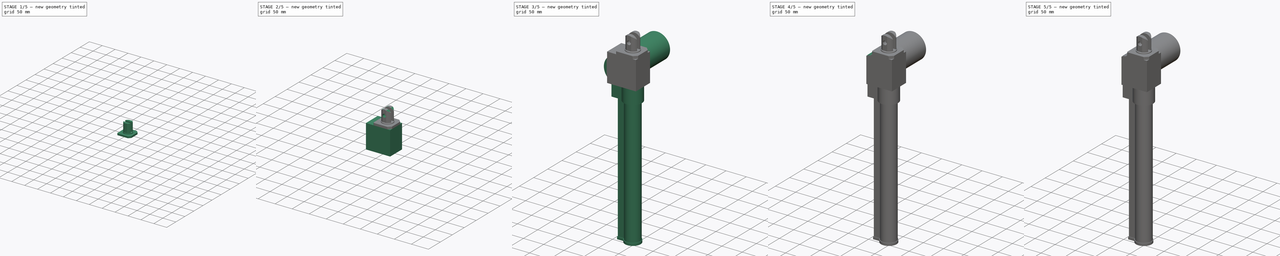
[diagram: build sequence overview — one tinted view per stage of 5, left to right]
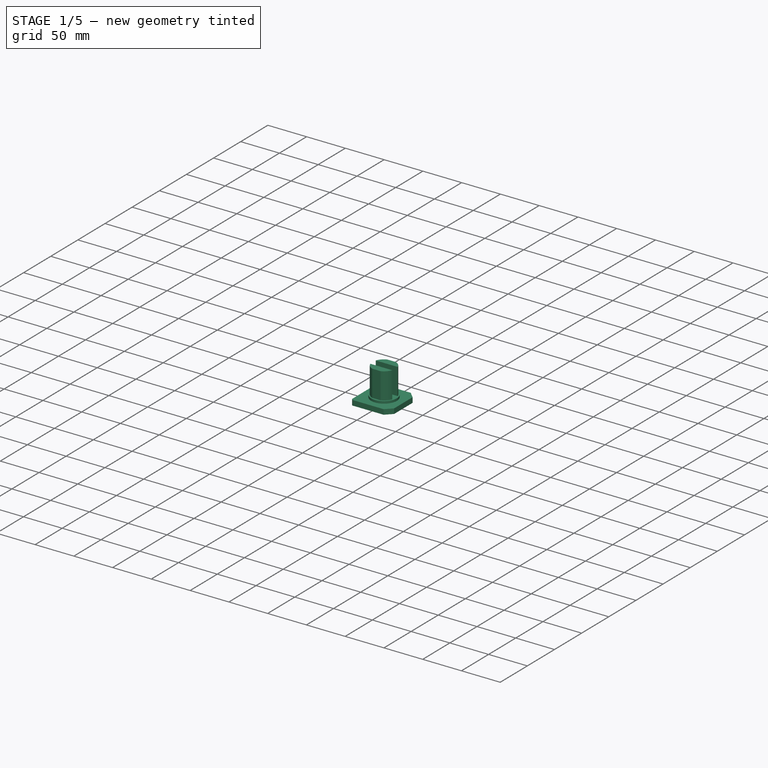
[diagram: stage 1 of 5 — iso view after this stage's code; geometry added in this stage tinted green]
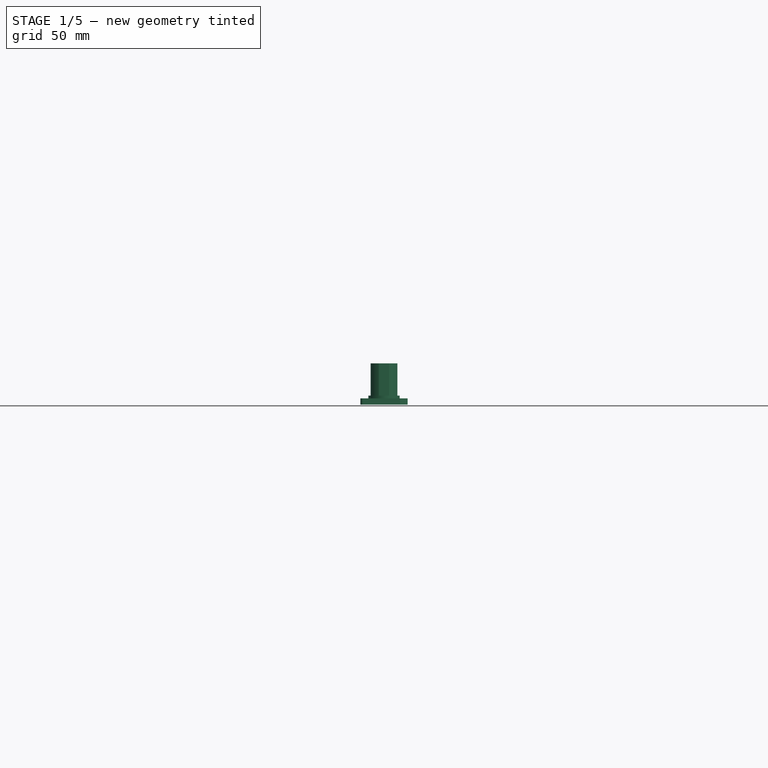
[diagram: stage 1 of 5 — front view after this stage's code; geometry added in this stage tinted green]
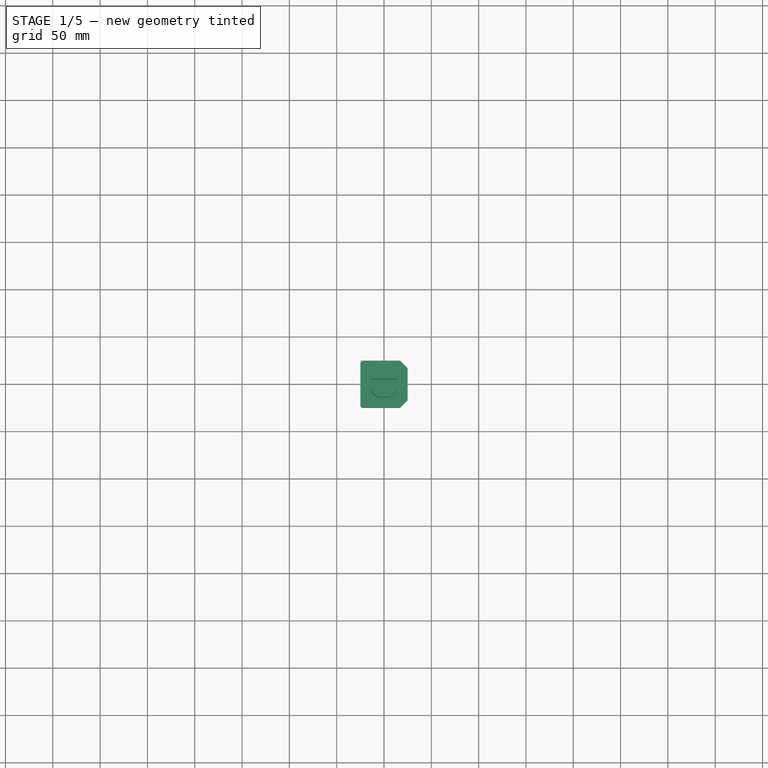
[diagram: stage 1 of 5 — top view after this stage's code; geometry added in this stage tinted green]
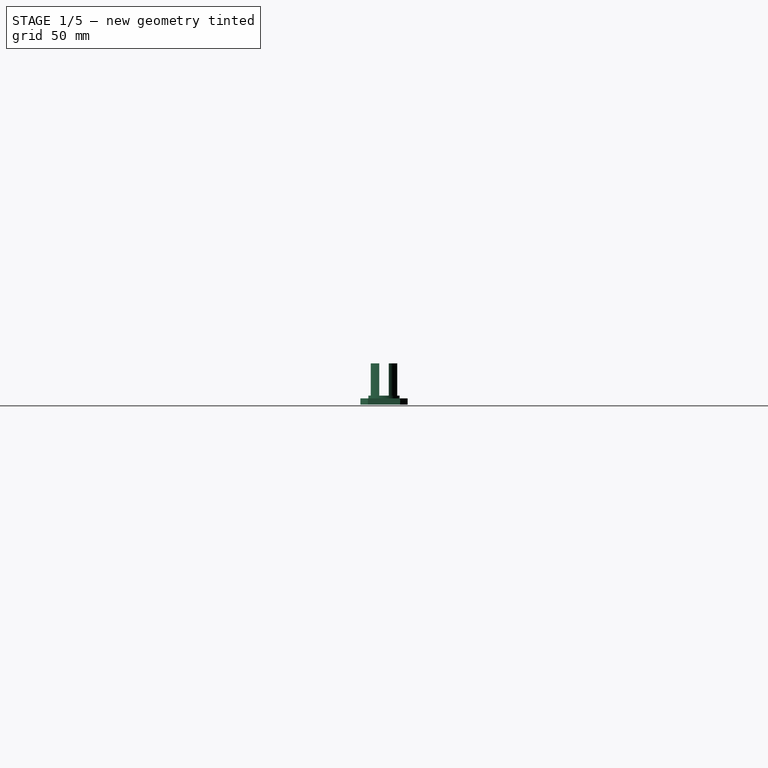
[diagram: stage 1 of 5 — right view after this stage's code; geometry added in this stage tinted green]
FCSTD DOCUMENT  (FreeCAD 0.19R24366 (Git))
Label: Actuator
License: All rights reserved
LicenseURL: http://en.wikipedia.org/wiki/All_rights_reserved
objects: Sketcher::SketchObject×13, PartDesign::Pad×9, PartDesign::Pocket×4, PartDesign::Chamfer×2, PartDesign::Fillet×1, PartDesign::Body×1
note: 46 computed .brp shape members not serialized (recipe doc carries the construction recipe); baked Part::Feature solids carry a one-line shape summary decoded from their .brp

FEATURE [Sketcher::SketchObject] Sketch  label="End mount plate sketch"
  FullyConstrained = true
  MapMode = 5
  Support = -> [XY_Plane]
  sketch-geometry (8):
    g0: LineSegment StartX=-22 StartY=25 StartZ=0 EndX=17 EndY=25 EndZ=0
    g1: LineSegment StartX=25 StartY=17 StartZ=0 EndX=25 EndY=-17 EndZ=0
    g2: LineSegment StartX=17 StartY=-25 StartZ=0 EndX=-22 EndY=-25 EndZ=0
    g3: LineSegment StartX=-25 StartY=-22 StartZ=0 EndX=-25 EndY=22 EndZ=0
    g4: LineSegment StartX=17 StartY=25 StartZ=0 EndX=25 EndY=17 EndZ=0
    g5: LineSegment StartX=17 StartY=-25 StartZ=0 EndX=25 EndY=-17 EndZ=0
    g6: ArcOfCircle CenterX=-22 CenterY=22 CenterZ=0 NormalX=0 NormalY=0 NormalZ=1 AngleXU=0 Radius=3 StartAngle=1.5708 EndAngle=3.14159
    g7: ArcOfCircle CenterX=-22 CenterY=-22 CenterZ=0 NormalX=0 NormalY=0 NormalZ=1 AngleXU=0 Radius=3 StartAngle=3.14159 EndAngle=4.71239
  constraints (22):
    c: Horizontal(g0)
    c: Horizontal(g2)
    c: Vertical(g1)
    c: Vertical(g3)
    c: Tangent(g0,g6) = 1.5708
    c: Tangent(g3,g6) = 1.5708
    c: Tangent(g3,g7) = 1.5708
    c: Tangent(g2,g7) = 1.5708
    c: Radius(g6) = 3
    c: Radius(g7) = 3
    c: Coincident(g0,g4)
    c: Coincident(g1,g4)
    c: Coincident(g1,g5)
    c: Coincident(g2,g5)
    c: DistanceX(g0,g1) = 8
    c: DistanceY(g1,g0) = 8
    c: DistanceX(g2,g1) = 8
    c: DistanceY(g2,g1) = 8
    c: DistanceY(g2,g0) = 50
    c: DistanceX(g3,g1) = 50
    c: DistanceX(g-1,g1) = 25
    c: DistanceY(g2,g-1) = 25
FEATURE [PartDesign::Pad] Pad  label="End mount plate"
  Direction = (1,1,1)
  Length = 6.5
  Length2 = 100
  Profile = -> Sketch
  Type = 0
FEATURE [Sketcher::SketchObject] Sketch001  label="End mount plate raise sketch"
  FullyConstrained = true
  MapMode = 5
  Placement = pos=(0,0,6.5) rot=(0,0,1;0rad)
  Support = -> [Pad]
  sketch-geometry (1):
    g0: Circle CenterX=0 CenterY=0 CenterZ=0 NormalX=0 NormalY=0 NormalZ=1 AngleXU=0 Radius=16.5
  constraints (2):
    c: Coincident(g0,g-1)
    c: Radius(g0) = 16.5
FEATURE [PartDesign::Pad] Pad001  label="End mount plate raise"
  BaseFeature = -> Pad
  Direction = (1,1,1)
  Length = 3
  Length2 = 100
  Profile = -> Sketch001
  Type = 0
FEATURE [Sketcher::SketchObject] Sketch002  label="End mount forks sketch"
  FullyConstrained = true
  MapMode = 5
  Placement = pos=(0,0,9.5) rot=(0,0,1;0rad)
  Support = -> [Pad001]
  sketch-geometry (8):
    g0: ArcOfCircle CenterX=0 CenterY=0 CenterZ=0 NormalX=0 NormalY=0 NormalZ=1 AngleXU=0 Radius=15 StartAngle=1.938 EndAngle=2.80176
    g1: LineSegment StartX=-5.38516 StartY=14 StartZ=0 EndX=5.38516 EndY=14 EndZ=0
    g2: LineSegment StartX=-14.1421 StartY=5 StartZ=0 EndX=14.1421 EndY=5 EndZ=0
    g3: LineSegment StartX=-14.1421 StartY=-5 StartZ=0 EndX=14.1421 EndY=-5 EndZ=0
    g4: LineSegment StartX=-5.38516 StartY=-14 StartZ=0 EndX=5.38516 EndY=-14 EndZ=0
    g5: ArcOfCircle CenterX=0 CenterY=0 CenterZ=0 NormalX=0 NormalY=0 NormalZ=1 AngleXU=0 Radius=15 StartAngle=3.48143 EndAngle=4.34518
    g6: ArcOfCircle CenterX=0 CenterY=0 CenterZ=0 NormalX=0 NormalY=0 NormalZ=1 AngleXU=0 Radius=15 StartAngle=0.339837 EndAngle=1.20359
    g7: ArcOfCircle CenterX=0 CenterY=0 CenterZ=0 NormalX=0 NormalY=0 NormalZ=1 AngleXU=0 Radius=15 StartAngle=5.0796 EndAngle=5.94335
  constraints (28):
    c: Coincident(g0,g-1)
    c: Radius(g0) = 15
    c: PointOnObject(g2,g0)
    c: PointOnObject(g3,g0)
    c: PointOnObject(g4,g0)
    c: PointOnObject(g4,g0)
    c: Horizontal(g4)
    c: Horizontal(g1)
    c: Horizontal(g2)
    c: Horizontal(g3)
    c: DistanceY(g3,g2) = 10
    c: DistanceY(g4,g1) = 28
    c: Equal(g1,g4)
    c: Equal(g2,g3)
    c: Coincident(g0,g1)
    c: Coincident(g6,g1)
    c: Equal(g0,g5)
    c: Coincident(g0,g2)
    c: Coincident(g5,g3)
    c: Coincident(g0,g5)
    c: Equal(g5,g6)
    c: PointOnObject(g7,g3)
    c: PointOnObject(g6,g2)
    c: Coincident(g5,g6)
    c: Equal(g5,g7)
    c: PointOnObject(g5,g4)
    c: PointOnObject(g7,g4)
    c: Coincident(g5,g7)
FEATURE [PartDesign::Pad] Pad002  label="End mount forks"
  BaseFeature = -> Pad001
  Direction = (1,1,1)
  Length = 34
  Length2 = 100
  Profile = -> Sketch002
  Type = 0
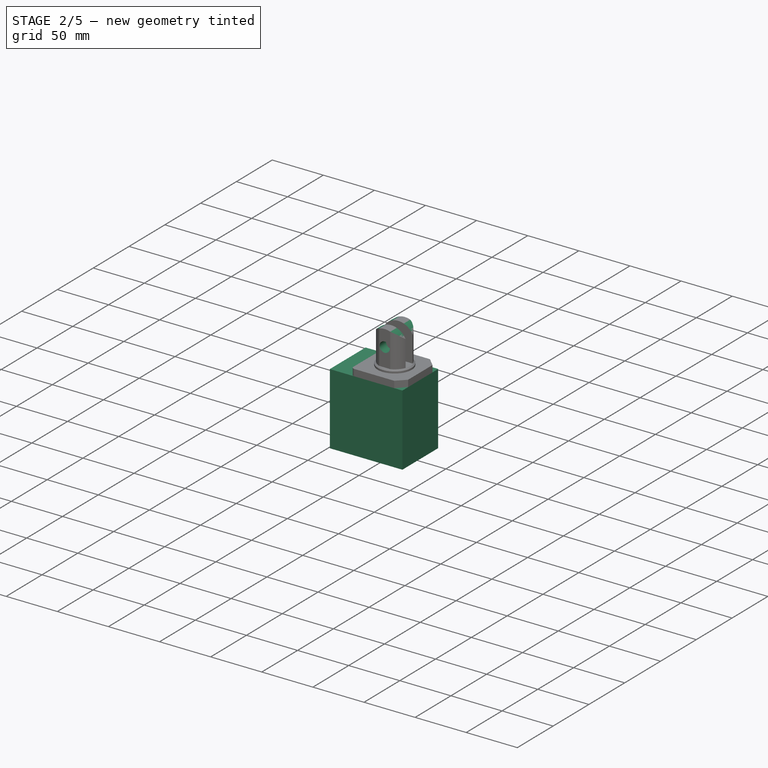
[diagram: stage 2 of 5 — iso view after this stage's code; geometry added in this stage tinted green]
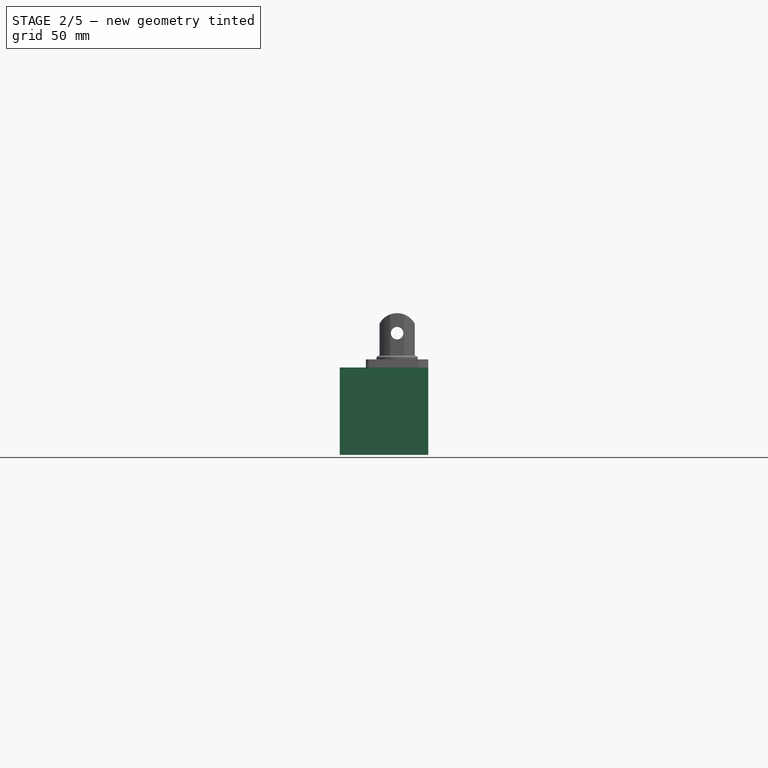
[diagram: stage 2 of 5 — front view after this stage's code; geometry added in this stage tinted green]
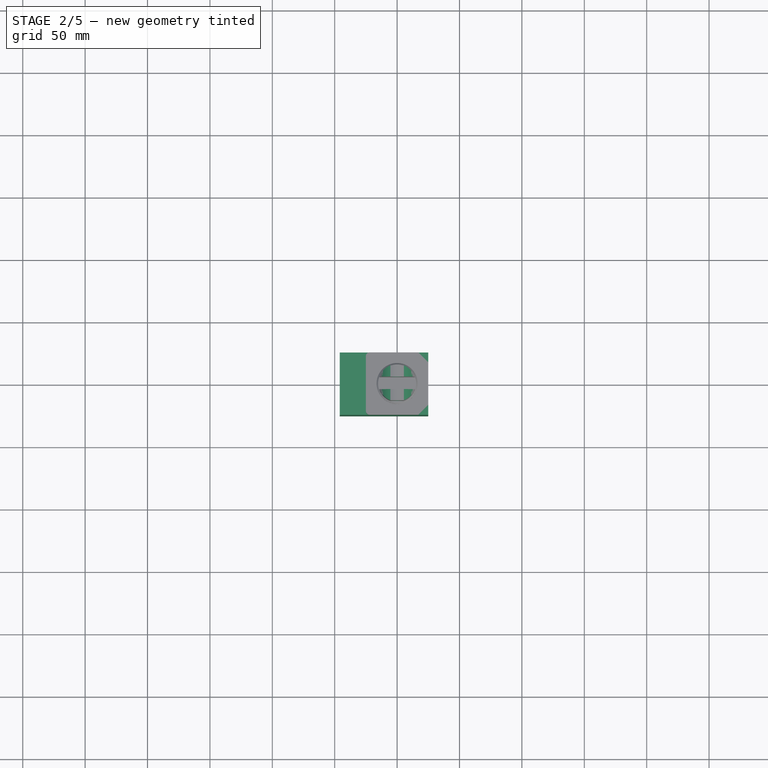
[diagram: stage 2 of 5 — top view after this stage's code; geometry added in this stage tinted green]
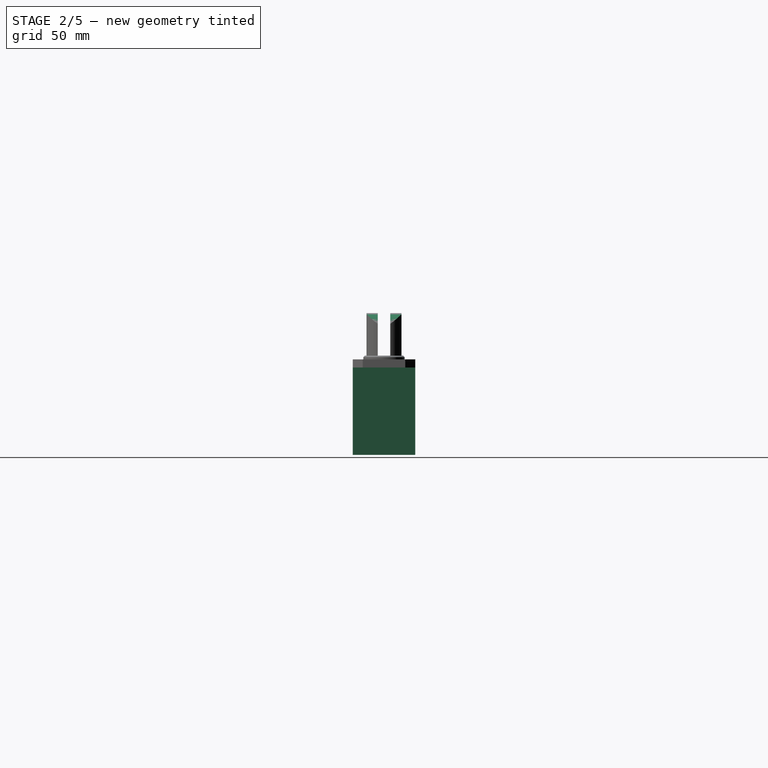
[diagram: stage 2 of 5 — right view after this stage's code; geometry added in this stage tinted green]
FEATURE [Sketcher::SketchObject] Sketch003  label="End mount hole and round sketch"
  ExternalGeometry = -> [Pad002]
  FullyConstrained = true
  MapMode = 5
  Placement = pos=(0,-14,0) rot=(1,0,0;1.5708rad)
  Support = -> [Pad002]
  sketch-geometry (5):
    g0: ArcOfCircle CenterX=0 CenterY=27.5 CenterZ=0 NormalX=0 NormalY=0 NormalZ=1 AngleXU=0 Radius=16 StartAngle=0.452817 EndAngle=2.68878
    g1: LineSegment StartX=-14.3875 StartY=34.5 StartZ=0 EndX=-14.3875 EndY=44.5 EndZ=0
    g2: LineSegment StartX=14.3875 StartY=34.5 StartZ=0 EndX=14.3875 EndY=44.5 EndZ=0
    g3: LineSegment StartX=14.3875 StartY=44.5 StartZ=0 EndX=-14.3875 EndY=44.5 EndZ=0
    g4: Circle CenterX=0 CenterY=27.5 CenterZ=0 NormalX=0 NormalY=0 NormalZ=1 AngleXU=0 Radius=5
  constraints (15):
    c: PointOnObject(g0,g-2)
    c: Tangent(g0,g-4)
    c: Vertical(g1)
    c: Vertical(g2)
    c: Coincident(g3,g2)
    c: Coincident(g3,g1)
    c: Horizontal(g3)
    c: DistanceY(g-4,g2) = 1
    c: Coincident(g0,g2)
    c: Coincident(g0,g1)
    c: DistanceY(g-3,g0) = 18
    c: Equal(g1,g2)
    c: DistanceY(g2,g2) = 10
    c: Coincident(g4,g0)
    c: Radius(g4) = 5
FEATURE [PartDesign::Pocket] Pocket  label="End mount hole and round"
  BaseFeature = -> Pad002
  Length = 30
  Length2 = 100
  Profile = -> Sketch003
  Type = 0
FEATURE [PartDesign::Chamfer] Chamfer  label="End mount weld chamfer"
  Angle = 45
  Base = -> Pocket [Edge27]
  BaseFeature = -> Pocket
  ChamferType = 0
  FlipDirection = false
  Size = 1.25
  Size2 = 1
  SupportTransform = false
FEATURE [Sketcher::SketchObject] Sketch004  label="Basic gear block sketch"
  FullyConstrained = true
  MapMode = 5
  Placement = pos=(0,0,0) rot=(1,0,0;3.14159rad)
  Support = -> [Chamfer]
  sketch-geometry (4):
    g0: LineSegment StartX=-46 StartY=25 StartZ=0 EndX=25 EndY=25 EndZ=0
    g1: LineSegment StartX=25 StartY=25 StartZ=0 EndX=25 EndY=-25 EndZ=0
    g2: LineSegment StartX=25 StartY=-25 StartZ=0 EndX=-46 EndY=-25 EndZ=0
    g3: LineSegment StartX=-46 StartY=-25 StartZ=0 EndX=-46 EndY=25 EndZ=0
  constraints (12):
    c: Coincident(g0,g1)
    c: Coincident(g1,g2)
    c: Coincident(g2,g3)
    c: Coincident(g3,g0)
    c: Horizontal(g0)
    c: Horizontal(g2)
    c: Vertical(g1)
    c: Vertical(g3)
    c: DistanceX(g-1,g0) = 25
    c: DistanceY(g-1,g0) = 25
    c: DistanceY(g1,g-1) = 25
    c: DistanceX(g0,g-1) = 46
FEATURE [PartDesign::Pad] Pad003  label="Basic gear block"
  BaseFeature = -> Chamfer
  Direction = (1,1,1)
  Length = 70
  Length2 = 100
  Profile = -> Sketch004
  Type = 0
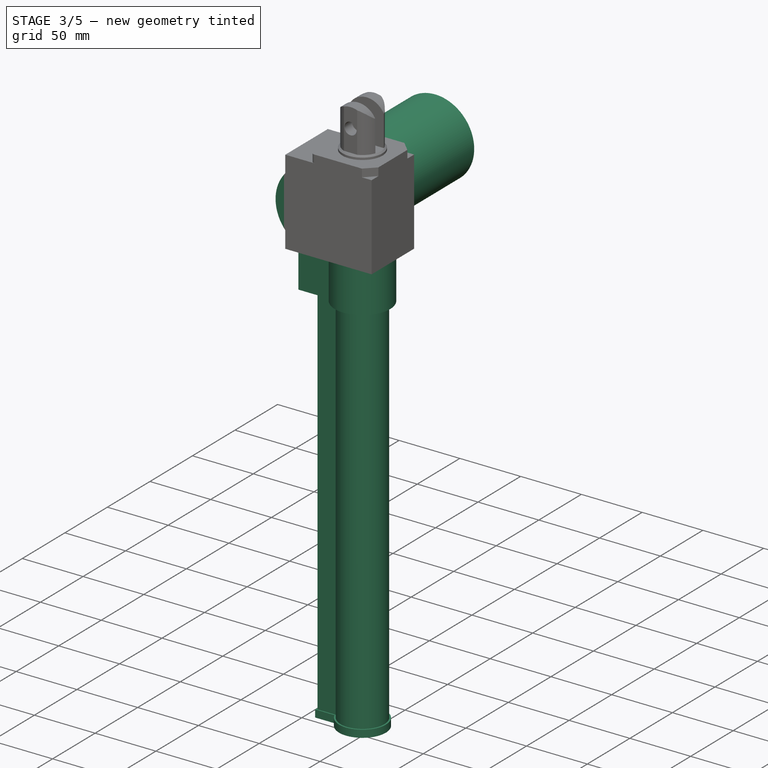
[diagram: stage 3 of 5 — iso view after this stage's code; geometry added in this stage tinted green]
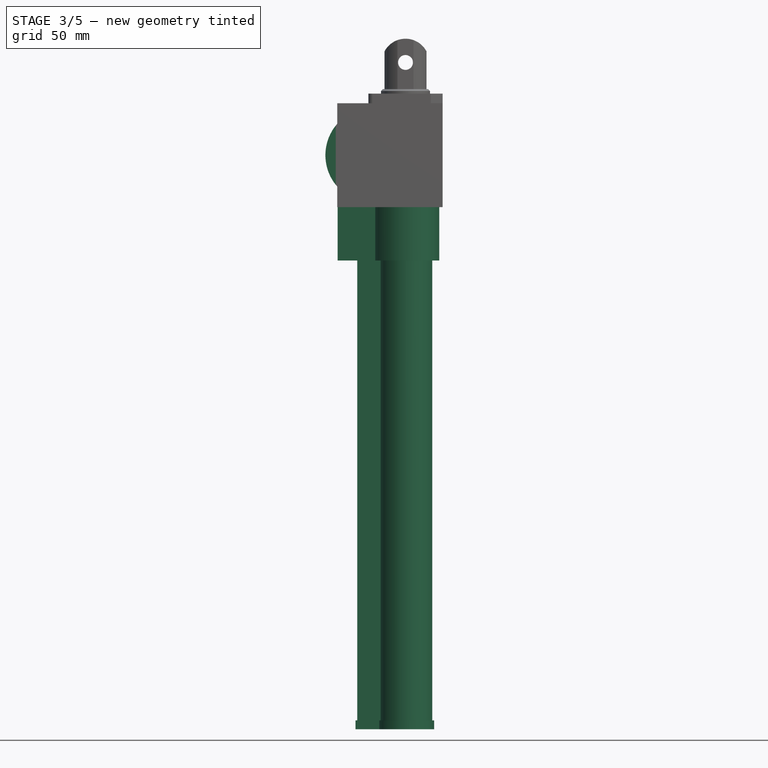
[diagram: stage 3 of 5 — front view after this stage's code; geometry added in this stage tinted green]
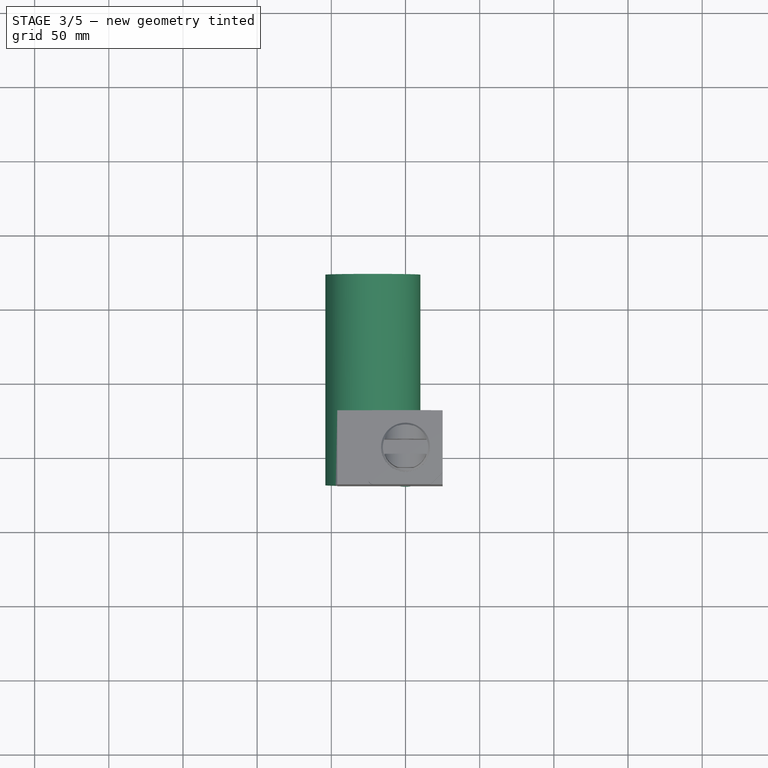
[diagram: stage 3 of 5 — top view after this stage's code; geometry added in this stage tinted green]
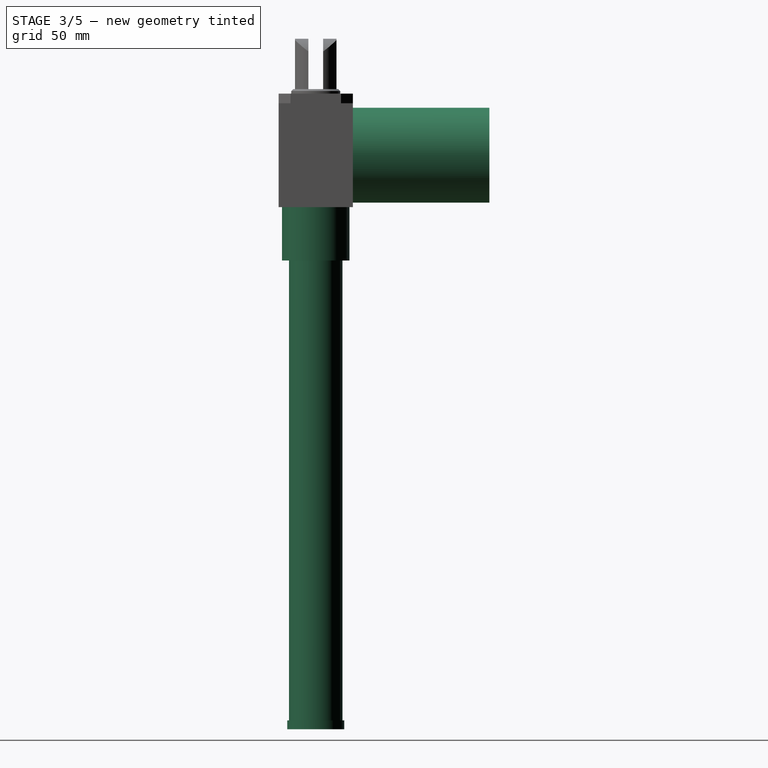
[diagram: stage 3 of 5 — right view after this stage's code; geometry added in this stage tinted green]
FEATURE [Sketcher::SketchObject] Sketch005  label="Basic motor body sketch"
  FullyConstrained = true
  MapMode = 5
  Placement = pos=(0,-25,0) rot=(1,0,0;1.5708rad)
  Support = -> [Pad003]
  sketch-geometry (1):
    g0: Circle CenterX=-22 CenterY=-35 CenterZ=0 NormalX=0 NormalY=0 NormalZ=1 AngleXU=0 Radius=32
  constraints (3):
    c: DistanceY(g0,g-1) = 35
    c: Radius(g0) = 32
    c: DistanceX(g0,g-1) = 22
FEATURE [PartDesign::Pad] Pad004  label="Basic motor body"
  BaseFeature = -> Pad003
  Direction = (1,1,1)
  Length = 142
  Length2 = 100
  Profile = -> Sketch005
  Reversed = true
  Type = 0
FEATURE [Sketcher::SketchObject] Sketch006  label="Actuator tube clamp sketch"
  FullyConstrained = true
  MapMode = 5
  Placement = pos=(0,0,-70) rot=(1,0,0;3.14159rad)
  Support = -> [Pad004]
  sketch-geometry (5):
    g0: ArcOfCircle CenterX=0 CenterY=0 CenterZ=0 NormalX=0 NormalY=0 NormalZ=1 AngleXU=0 Radius=22.75 StartAngle=3.5967 EndAngle=8.96967
    g1: LineSegment StartX=-45.75 StartY=10 StartZ=0 EndX=-20.4343 EndY=10 EndZ=0
    g2: LineSegment StartX=-20.4343 StartY=-10 StartZ=0 EndX=-45.75 EndY=-10 EndZ=0
    g3: LineSegment StartX=-45.75 StartY=-10 StartZ=0 EndX=-45.75 EndY=10 EndZ=0
    g4: GeomPoint X=22.75 Y=0 Z=0
  constraints (14):
    c: Coincident(g0,g-1)
    c: Radius(g0) = 22.75
    c: Coincident(g2,g3)
    c: Coincident(g3,g1)
    c: Horizontal(g1)
    c: Horizontal(g2)
    c: Vertical(g3)
    c: DistanceY(g2,g1) = 20
    c: Coincident(g1,g0)
    c: Coincident(g2,g0)
    c: Equal(g1,g2)
    c: PointOnObject(g4,g0)
    c: PointOnObject(g4,g-1)
    c: DistanceX(g1,g4) = 68.5
FEATURE [PartDesign::Pad] Pad005  label="Actuator tube clamp"
  BaseFeature = -> Pad004
  Direction = (1,1,1)
  Length = 36
  Length2 = 100
  Profile = -> Sketch006
  Type = 0
FEATURE [Sketcher::SketchObject] Sketch007  label="Actuator tube section sketch"
  FullyConstrained = true
  MapMode = 5
  Placement = pos=(0,0,-106) rot=(1,0,0;3.14159rad)
  Support = -> [Pad005]
  sketch-geometry (5):
    g0: ArcOfCircle CenterX=0 CenterY=0 CenterZ=0 NormalX=0 NormalY=0 NormalZ=1 AngleXU=0 Radius=18 StartAngle=3.51105 EndAngle=9.05532
    g1: LineSegment StartX=-32.5 StartY=6.5 StartZ=0 EndX=-16.7854 EndY=6.5 EndZ=0
    g2: LineSegment StartX=-16.7854 StartY=-6.5 StartZ=0 EndX=-32.5 EndY=-6.5 EndZ=0
    g3: LineSegment StartX=-32.5 StartY=-6.5 StartZ=0 EndX=-32.5 EndY=6.5 EndZ=0
    g4: GeomPoint X=18 Y=0 Z=0
  constraints (14):
    c: Coincident(g0,g-1)
    c: Coincident(g2,g3)
    c: Coincident(g3,g1)
    c: Horizontal(g1)
    c: Horizontal(g2)
    c: Vertical(g3)
    c: Radius(g0) = 18
    c: DistanceY(g3,g3) = 13
    c: Coincident(g0,g2)
    c: Coincident(g0,g1)
    c: Equal(g1,g2)
    c: PointOnObject(g4,g0)
    c: PointOnObject(g4,g-1)
    c: DistanceX(g1,g4) = 50.5
FEATURE [PartDesign::Pad] Pad006  label="Actuator tube section"
  BaseFeature = -> Pad005
  Direction = (1,1,1)
  Length = 310
  Length2 = 100
  Profile = -> Sketch007
  Type = 0
FEATURE [Sketcher::SketchObject] Sketch008  label="Actuator tube cover plate sketch"
  FullyConstrained = true
  MapMode = 5
  Placement = pos=(0,0,-416) rot=(1,0,0;3.14159rad)
  Support = -> [Pad006]
  sketch-geometry (5):
    g0: ArcOfCircle CenterX=0 CenterY=0 CenterZ=0 NormalX=0 NormalY=0 NormalZ=1 AngleXU=0 Radius=19.25 StartAngle=3.5418 EndAngle=9.02457
    g1: LineSegment StartX=-33.75 StartY=7.5 StartZ=0 EndX=-17.7289 EndY=7.5 EndZ=0
    g2: LineSegment StartX=-17.7289 StartY=-7.5 StartZ=0 EndX=-33.75 EndY=-7.5 EndZ=0
    g3: LineSegment StartX=-33.75 StartY=-7.5 StartZ=0 EndX=-33.75 EndY=7.5 EndZ=0
    g4: GeomPoint X=19.25 Y=0 Z=0
  constraints (14):
    c: Coincident(g0,g-1)
    c: Coincident(g2,g3)
    c: Coincident(g3,g1)
    c: Horizontal(g1)
    c: Horizontal(g2)
    c: Vertical(g3)
    c: Radius(g0) = 19.25
    c: DistanceY(g2,g1) = 15
    c: Equal(g1,g2)
    c: Coincident(g0,g2)
    c: Coincident(g0,g1)
    c: PointOnObject(g4,g0)
    c: PointOnObject(g4,g-1)
    c: DistanceX(g1,g4) = 53
FEATURE [PartDesign::Pad] Pad007  label="Actuator tube cover plate"
  BaseFeature = -> Pad006
  Direction = (1,1,1)
  Length = 6
  Length2 = 100
  Profile = -> Sketch008
  Type = 0
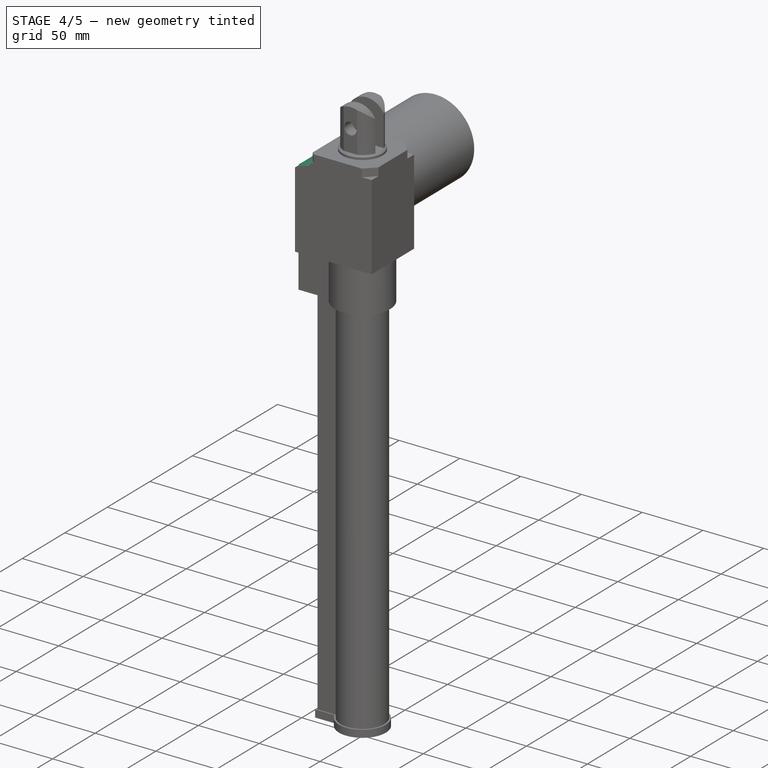
[diagram: stage 4 of 5 — iso view after this stage's code; geometry added in this stage tinted green]
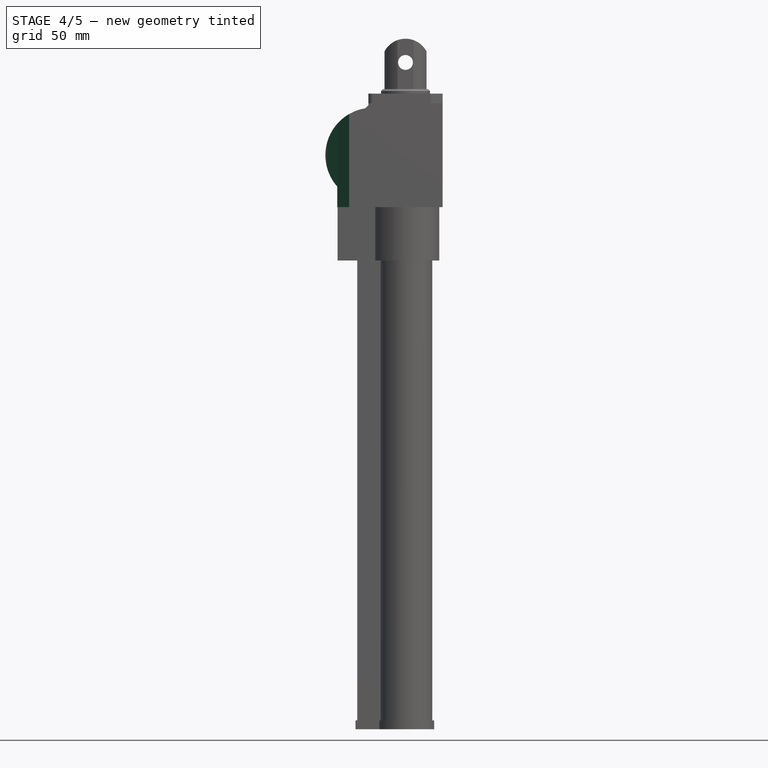
[diagram: stage 4 of 5 — front view after this stage's code; geometry added in this stage tinted green]
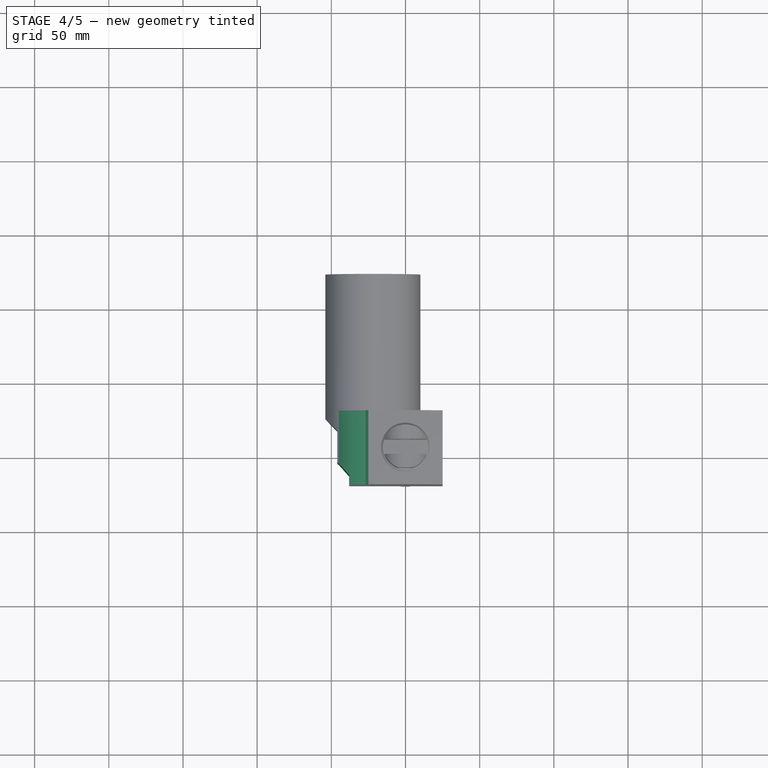
[diagram: stage 4 of 5 — top view after this stage's code; geometry added in this stage tinted green]
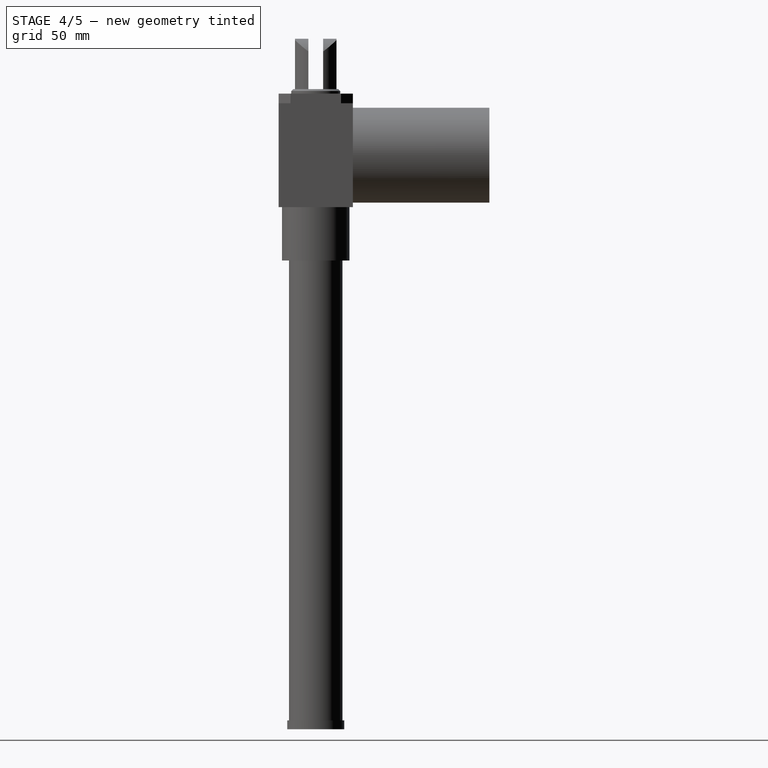
[diagram: stage 4 of 5 — right view after this stage's code; geometry added in this stage tinted green]
FEATURE [Sketcher::SketchObject] Sketch009  label="Gear block shape 1 sketch"
  FullyConstrained = true
  MapMode = 5
  Placement = pos=(0,-25,0) rot=(1,0,0;1.5708rad)
  Support = -> [Pad003]
  sketch-geometry (5):
    g0: ArcOfCircle CenterX=-22 CenterY=-35 CenterZ=0 NormalX=0 NormalY=0 NormalZ=1 AngleXU=0 Radius=32 StartAngle=1.72769 EndAngle=3.14159
    g1: LineSegment StartX=-54 StartY=-35 StartZ=0 EndX=-54 EndY=0 EndZ=0
    g2: LineSegment StartX=-25 StartY=0 StartZ=0 EndX=-54 EndY=0 EndZ=0
    g3: LineSegment StartX=-27 StartY=-3.39304 StartZ=0 EndX=-25 EndY=-1.39304 EndZ=0
    g4: LineSegment StartX=-25 StartY=-1.39304 StartZ=0 EndX=-25 EndY=0 EndZ=0
  constraints (15):
    c: DistanceY(g0,g-1) = 35
    c: DistanceX(g0,g-1) = 22
    c: Radius(g0) = 32
    c: Vertical(g1)
    c: Tangent(g0,g1) = 1.5708
    c: Coincident(g2,g1)
    c: Horizontal(g2)
    c: DistanceX(g0,g0) = 5
    c: Coincident(g3,g0)
    c: Coincident(g4,g3)
    c: Coincident(g4,g2)
    c: Vertical(g4)
    c: DistanceX(g0,g3) = 2
    c: DistanceY(g0,g3) = 2
    c: DistanceY(g-1,g2) = 0
FEATURE [PartDesign::Pocket] Pocket001  label="Gear block shape 1"
  BaseFeature = -> Pad007
  Length = 60
  Length2 = 100
  Profile = -> Sketch009
  Type = 1
FEATURE [Sketcher::SketchObject] Sketch010  label="Gear block shape 2 sketch"
  FullyConstrained = true
  MapMode = 5
  Support = -> [Pad003]
  sketch-geometry (6):
    g0: LineSegment StartX=-38 StartY=-25 StartZ=0 EndX=-38 EndY=-18.5 EndZ=0
    g1: LineSegment StartX=-38 StartY=-18.5 StartZ=0 EndX=-46 EndY=-9.5 EndZ=0
    g2: LineSegment StartX=-46 StartY=-9.5 StartZ=0 EndX=-46 EndY=11.5 EndZ=0
    g3: LineSegment StartX=-55 StartY=20.5 StartZ=0 EndX=-55 EndY=-25 EndZ=0
    g4: LineSegment StartX=-55 StartY=-25 StartZ=0 EndX=-38 EndY=-25 EndZ=0
    g5: LineSegment StartX=-46 StartY=11.5 StartZ=0 EndX=-55 EndY=20.5 EndZ=0
  constraints (18):
    c: Vertical(g0)
    c: Coincident(g0,g1)
    c: Coincident(g1,g2)
    c: Vertical(g2)
    c: Vertical(g3)
    c: Coincident(g3,g4)
    c: Horizontal(g4)
    c: Coincident(g4,g0)
    c: DistanceY(g0,g0) = 6.5
    c: DistanceY(g2,g2) = 21
    c: DistanceX(g1,g1) = 8
    c: DistanceX(g3,g2) = 9
    c: DistanceY(g1,g1) = 9
    c: DistanceX(g0,g-1) = 38
    c: DistanceY(g0,g-1) = 25
    c: Coincident(g5,g2)
    c: Coincident(g5,g3)
    c: DistanceY(g5,g5) = 9
FEATURE [PartDesign::Pocket] Pocket002  label="Gear block shape 2"
  BaseFeature = -> Pocket001
  Length = 70
  Length2 = 100
  Profile = -> Sketch010
  Type = 1
FEATURE [Sketcher::SketchObject] Sketch011  label="Actuator bore sketch"
  FullyConstrained = true
  MapMode = 5
  Placement = pos=(0,0,-422) rot=(1,0,0;3.14159rad)
  Support = -> [Pad007]
  sketch-geometry (1):
    g0: Circle CenterX=0 CenterY=0 CenterZ=0 NormalX=0 NormalY=0 NormalZ=1 AngleXU=0 Radius=12
  constraints (2):
    c: Coincident(g0,g-1)
    c: Radius(g0) = 12
FEATURE [PartDesign::Pocket] Pocket003  label="Actuator bore"
  BaseFeature = -> Pocket002
  Length = 300
  Length2 = 100
  Profile = -> Sketch011
  Type = 0
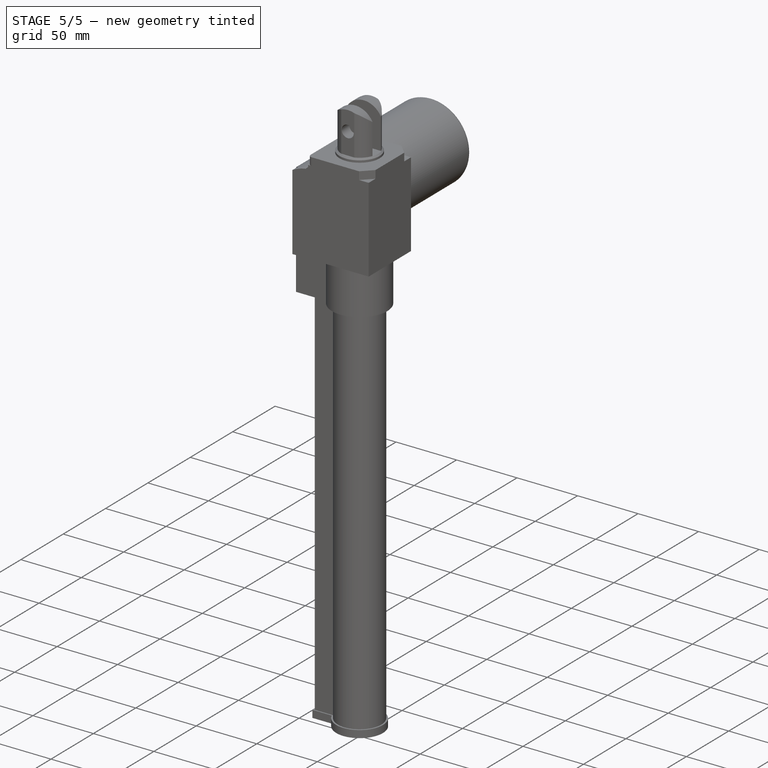
[diagram: stage 5 of 5 — iso view after this stage's code; geometry added in this stage tinted green]
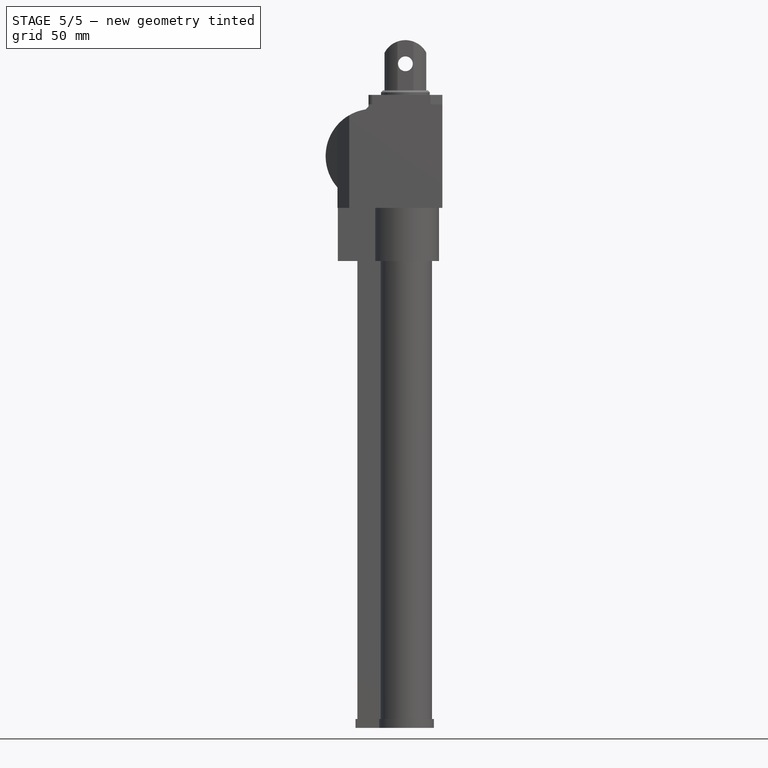
[diagram: stage 5 of 5 — front view after this stage's code; geometry added in this stage tinted green]
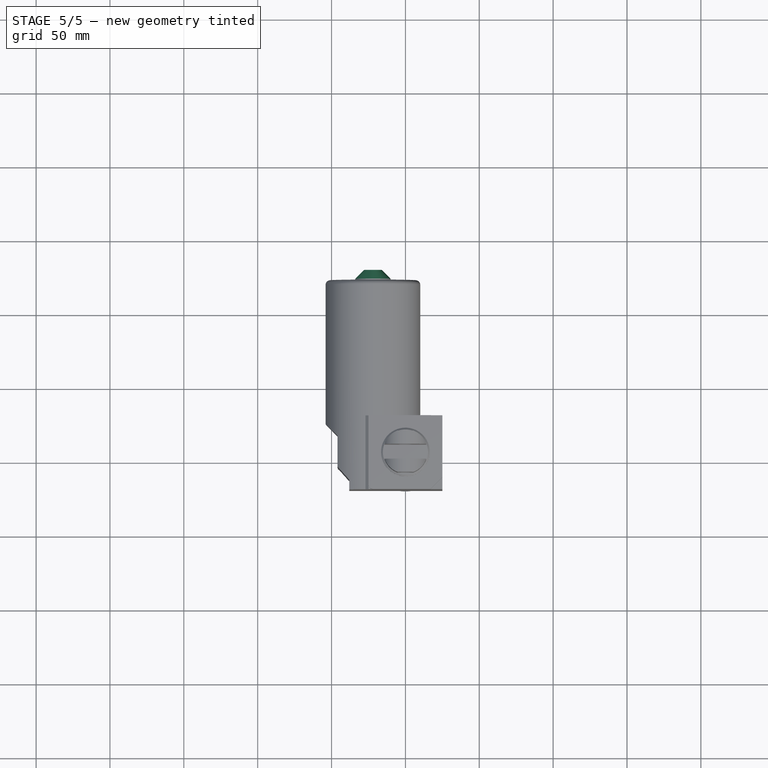
[diagram: stage 5 of 5 — top view after this stage's code; geometry added in this stage tinted green]
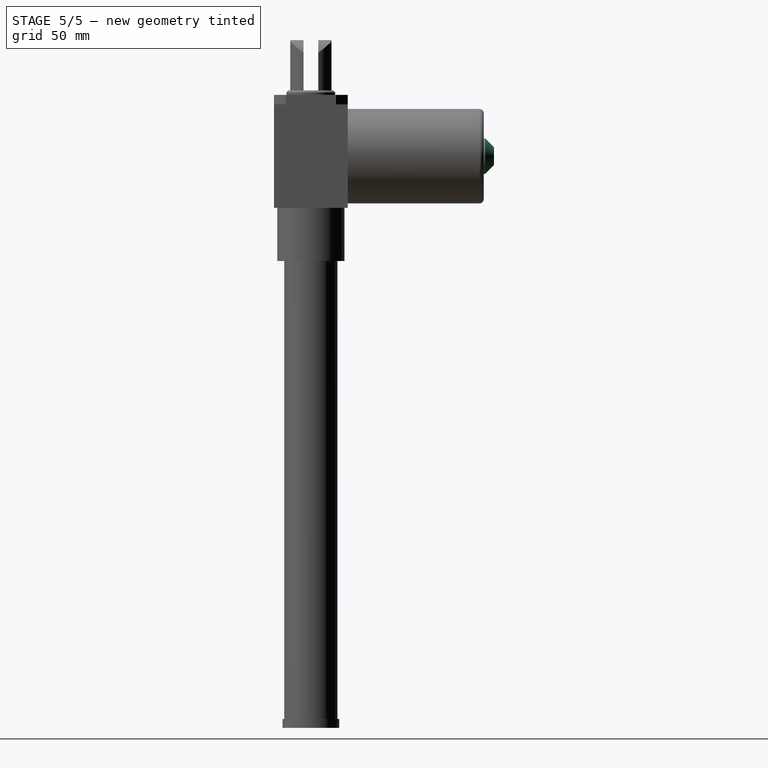
[diagram: stage 5 of 5 — right view after this stage's code; geometry added in this stage tinted green]
FEATURE [Sketcher::SketchObject] Sketch012
  ExternalGeometry = -> [Pad004]
  FullyConstrained = true
  MapMode = 5
  Placement = pos=(0,117,-3.04e-14) rot=(0,0.707107,0.707107;3.14159rad)
  Support = -> [Pad004]
  sketch-geometry (1):
    g0: Circle CenterX=22 CenterY=-35 CenterZ=0 NormalX=0 NormalY=0 NormalZ=1 AngleXU=0 Radius=12
  constraints (2):
    c: Coincident(g0,g-3)
    c: Radius(g0) = 12
FEATURE [PartDesign::Pad] Pad008  label="Motor end dimple"
  BaseFeature = -> Pocket003
  Direction = (1,1,1)
  Length = 7
  Length2 = 100
  Profile = -> Sketch012
  Type = 0
FEATURE [PartDesign::Chamfer] Chamfer001  label="Motor end chamfer"
  Angle = 45
  Base = -> Pad008 [Edge121]
  BaseFeature = -> Pad008
  ChamferType = 0
  FlipDirection = false
  Size = 6
  Size2 = 1
  SupportTransform = false
FEATURE [PartDesign::Fillet] Fillet  label="Motor end round"
  Base = -> Chamfer001 [Edge8,Edge6,Edge7]
  BaseFeature = -> Chamfer001
  Radius = 3
  SupportTransform = false
FEATURE [PartDesign::Body] Body
  Group = -> [Sketch,Pad,Sketch001,Pad001,Sketch002,Pad002,Sketch003,Pocket,Chamfer,Sketch004,Pad003,Sketch005,Pad004,Sketch006,Pad005,Sketch007,Pad006,Sketch008,Pad007,Sketch009,Pocket001,Sketch010,Pocket002,Sketch011,Pocket003,Sketch012,Pad008,Chamfer001,Fillet]
  Origin = -> Origin
  Tip = -> Fillet
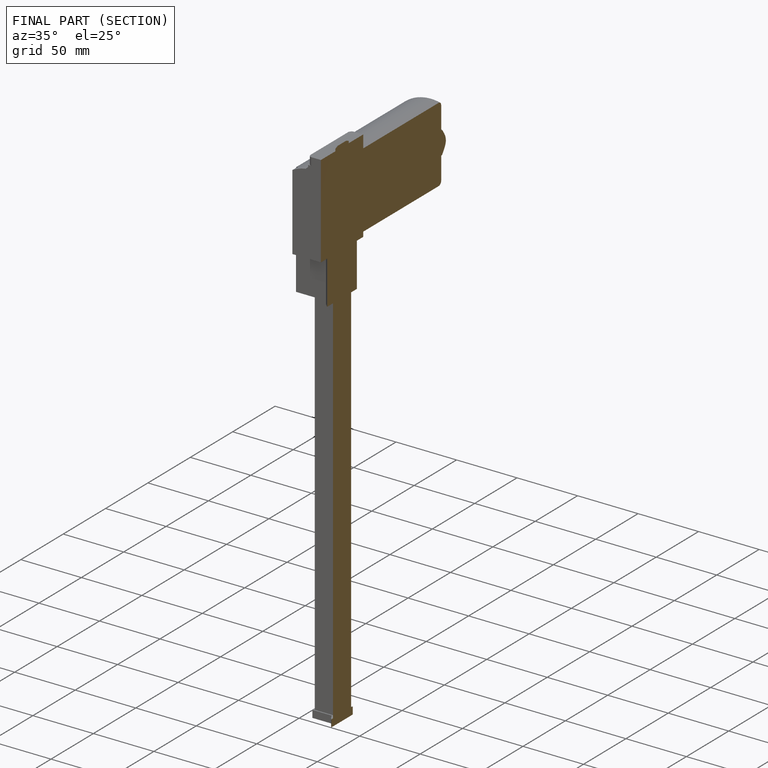
[diagram: finished part — half-section view (interior)]
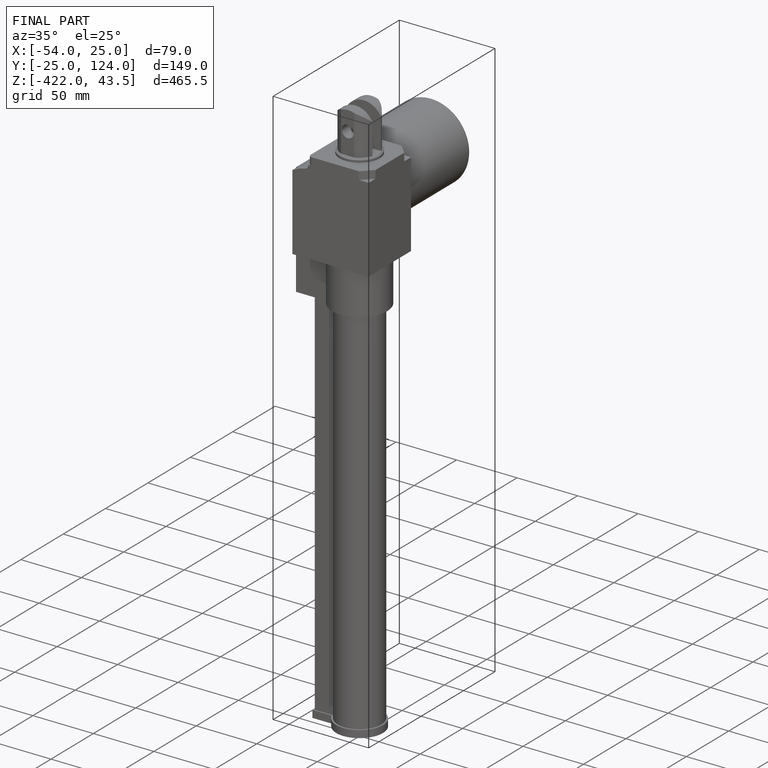
[diagram: finished part — iso view with bounding-box wireframe]
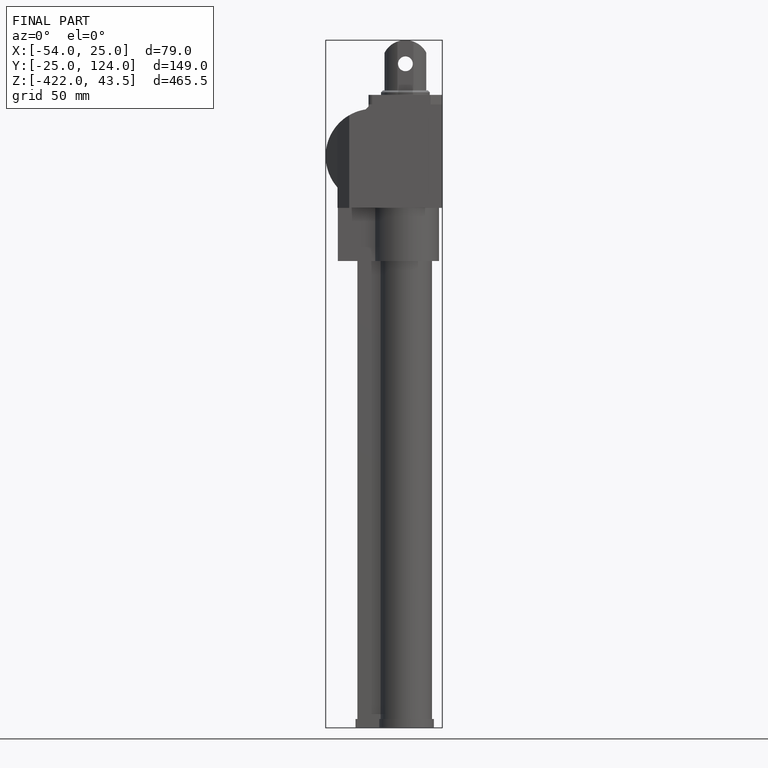
[diagram: finished part — front view with bounding-box wireframe]
